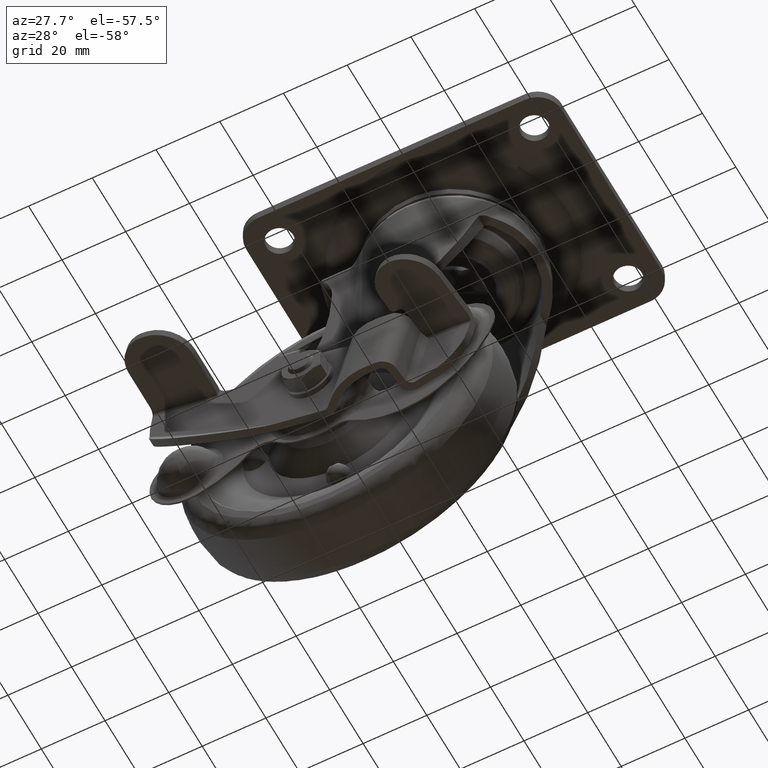
[diagram: clean part render]
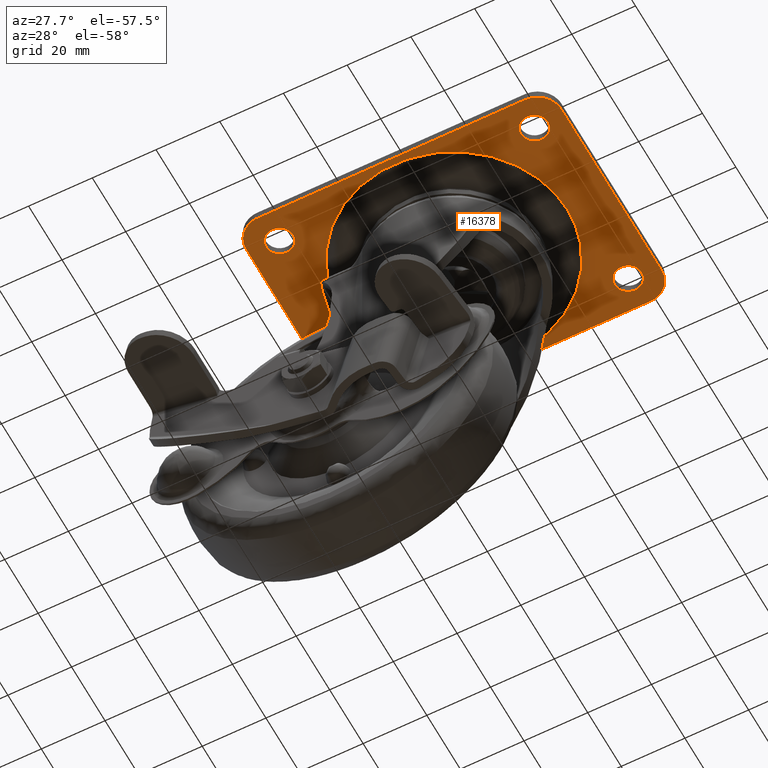
[diagram: same view with one face highlighted and labeled with its STEP entity id]
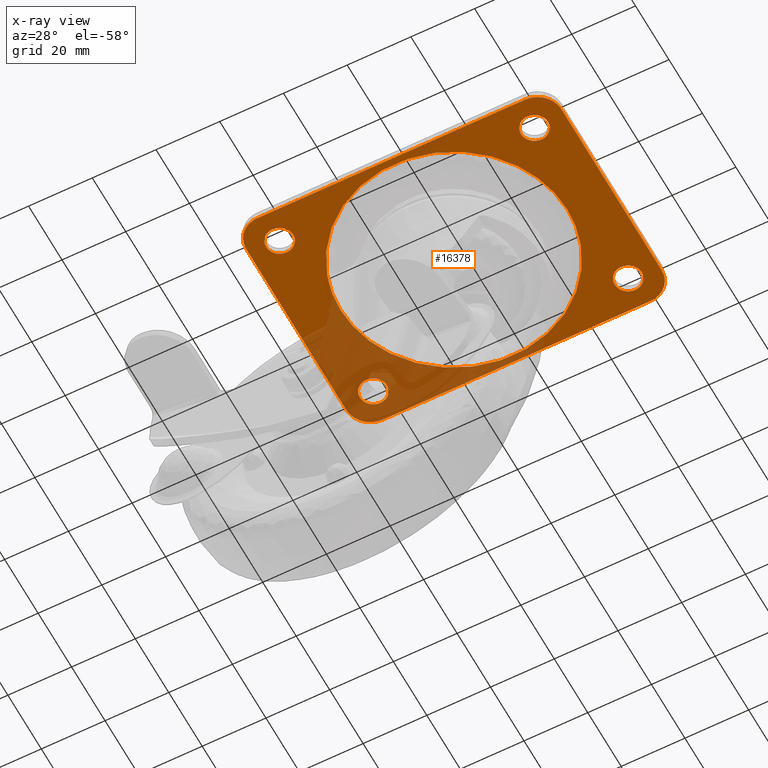
[diagram: x-ray of the same camera — body ghosted, the highlighted face saturated]
A machine part, auxiliary view. The second image highlights one B-rep face of the part: STEP entity #16378.
The next image is the same camera in x-ray: the body ghosted, the highlighted face saturated — about 25% of this face is hidden behind the body in this view.
In plain terms, the highlighted face is a freeform B-spline surface patch.
Its self-contained STEP definition (entity closure, byte-faithful):
#14474=CARTESIAN_POINT('',(-39.740543706934929,32.242072893290370,-2.899615000000000));
#14475=VERTEX_POINT('',#14474);
#14481=CARTESIAN_POINT('',(-35.750000000000007,28.0,-2.899615000000000));
#14482=VERTEX_POINT('',#14481);
#14483=CARTESIAN_POINT('',(-35.750000000000007,28.0,-2.899615000000000));
#14484=CARTESIAN_POINT('',(-35.750000000000014,31.998000784309607,-2.899615000000001));
#14485=CARTESIAN_POINT('',(-39.740543706934922,32.242072893290377,-2.899615000000000));
#14493=(BOUNDED_CURVE()B_SPLINE_CURVE(2,(#14483,#14484,#14485),.UNSPECIFIED.,.F.,.U.)B_SPLINE_CURVE_WITH_KNOTS((3,3),(0.500000000000000,0.739332962240263),.UNSPECIFIED.)CURVE()GEOMETRIC_REPRESENTATION_ITEM()RATIONAL_B_SPLINE_CURVE((1.0,0.719603993285164,0.976072041669547))REPRESENTATION_ITEM(''));
#14494=EDGE_CURVE('',#14482,#14475,#14493,.T.);
#14496=CARTESIAN_POINT('',(-40.259456293065071,23.757927106709630,-2.899615000000000));
#14497=VERTEX_POINT('',#14496);
#14498=CARTESIAN_POINT('',(-40.259456293065071,23.757927106709623,-2.899614999999999));
#14499=CARTESIAN_POINT('',(-40.129849244040031,23.749999999999993,-2.899614999999999));
#14500=CARTESIAN_POINT('',(-40.0,23.750000000000000,-2.899615000000000));
#14501=CARTESIAN_POINT('',(-35.750000000000007,23.750000000000011,-2.899615000000000));
#14502=CARTESIAN_POINT('',(-35.750000000000007,28.0,-2.899615000000000));
#14510=(BOUNDED_CURVE()B_SPLINE_CURVE(2,(#14498,#14499,#14500,#14501,#14502),.UNSPECIFIED.,.F.,.U.)B_SPLINE_CURVE_WITH_KNOTS((3,2,3),(0.239332962240263,0.250000000000000,0.500000000000000),.UNSPECIFIED.)CURVE()GEOMETRIC_REPRESENTATION_ITEM()RATIONAL_B_SPLINE_CURVE((0.976072041669547,0.987502787901384,1.0,0.707106781186548,1.0))REPRESENTATION_ITEM(''));
#14511=EDGE_CURVE('',#14497,#14482,#14510,.T.);
#14555=CARTESIAN_POINT('',(-44.250000000000000,28.0,-2.899615000000000));
#14556=VERTEX_POINT('',#14555);
#14557=CARTESIAN_POINT('',(-44.250000000000000,28.0,-2.899615000000000));
#14558=CARTESIAN_POINT('',(-44.250000000000007,24.001999215690390,-2.899615000000000));
#14559=CARTESIAN_POINT('',(-40.259456293065071,23.757927106709634,-2.899614999999999));
#14567=(BOUNDED_CURVE()B_SPLINE_CURVE(2,(#14557,#14558,#14559),.UNSPECIFIED.,.F.,.U.)B_SPLINE_CURVE_WITH_KNOTS((3,3),(0.0,0.239332962240263),.UNSPECIFIED.)CURVE()GEOMETRIC_REPRESENTATION_ITEM()RATIONAL_B_SPLINE_CURVE((1.0,0.719603993285164,0.976072041669546))REPRESENTATION_ITEM(''));
#14568=EDGE_CURVE('',#14556,#14497,#14567,.T.);
#14570=CARTESIAN_POINT('',(-39.740543706934922,32.242072893290377,-2.899615000000000));
#14571=CARTESIAN_POINT('',(-39.870150755959969,32.249999999999993,-2.899614999999999));
#14572=CARTESIAN_POINT('',(-40.0,32.250000000000000,-2.899615000000000));
#14573=CARTESIAN_POINT('',(-44.250000000000000,32.250000000000000,-2.899615000000000));
#14574=CARTESIAN_POINT('',(-44.250000000000000,28.0,-2.899615000000000));
#14582=(BOUNDED_CURVE()B_SPLINE_CURVE(2,(#14570,#14571,#14572,#14573,#14574),.UNSPECIFIED.,.F.,.U.)B_SPLINE_CURVE_WITH_KNOTS((3,2,3),(0.739332962240263,0.750000000000000,1.0),.UNSPECIFIED.)CURVE()GEOMETRIC_REPRESENTATION_ITEM()RATIONAL_B_SPLINE_CURVE((0.976072041669547,0.987502787901384,1.0,0.707106781186548,1.0))REPRESENTATION_ITEM(''));
#14583=EDGE_CURVE('',#14475,#14556,#14582,.T.);
#14780=CARTESIAN_POINT('',(40.259456293065071,32.242072893290370,-2.899615000000000));
#14781=VERTEX_POINT('',#14780);
#14787=CARTESIAN_POINT('',(44.250000000000000,28.0,-2.899615000000000));
#14788=VERTEX_POINT('',#14787);
#14789=CARTESIAN_POINT('',(44.250000000000000,28.0,-2.899615000000000));
#14790=CARTESIAN_POINT('',(44.249999999999993,31.998000784309607,-2.899615000000001));
#14791=CARTESIAN_POINT('',(40.259456293065064,32.242072893290377,-2.899615000000000));
#14799=(BOUNDED_CURVE()B_SPLINE_CURVE(2,(#14789,#14790,#14791),.UNSPECIFIED.,.F.,.U.)B_SPLINE_CURVE_WITH_KNOTS((3,3),(0.500000000000000,0.739332962240263),.UNSPECIFIED.)CURVE()GEOMETRIC_REPRESENTATION_ITEM()RATIONAL_B_SPLINE_CURVE((1.0,0.719603993285164,0.976072041669547))REPRESENTATION_ITEM(''));
#14800=EDGE_CURVE('',#14788,#14781,#14799,.T.);
#14802=CARTESIAN_POINT('',(39.740543706934929,23.757927106709630,-2.899615000000000));
#14803=VERTEX_POINT('',#14802);
#14804=CARTESIAN_POINT('',(39.740543706934929,23.757927106709623,-2.899614999999999));
#14805=CARTESIAN_POINT('',(39.870150755959976,23.749999999999993,-2.899614999999999));
#14806=CARTESIAN_POINT('',(40.0,23.750000000000000,-2.899615000000000));
#14807=CARTESIAN_POINT('',(44.250000000000000,23.750000000000011,-2.899615000000000));
#14808=CARTESIAN_POINT('',(44.250000000000000,28.0,-2.899615000000000));
#14816=(BOUNDED_CURVE()B_SPLINE_CURVE(2,(#14804,#14805,#14806,#14807,#14808),.UNSPECIFIED.,.F.,.U.)B_SPLINE_CURVE_WITH_KNOTS((3,2,3),(0.239332962240263,0.250000000000000,0.500000000000000),.UNSPECIFIED.)CURVE()GEOMETRIC_REPRESENTATION_ITEM()RATIONAL_B_SPLINE_CURVE((0.976072041669547,0.987502787901384,1.0,0.707106781186548,1.0))REPRESENTATION_ITEM(''));
#14817=EDGE_CURVE('',#14803,#14788,#14816,.T.);
#14861=CARTESIAN_POINT('',(35.750000000000007,28.0,-2.899615000000000));
#14862=VERTEX_POINT('',#14861);
#14863=CARTESIAN_POINT('',(35.750000000000007,28.0,-2.899615000000000));
#14864=CARTESIAN_POINT('',(35.750000000000007,24.001999215690386,-2.899615000000000));
#14865=CARTESIAN_POINT('',(39.740543706934936,23.757927106709634,-2.899615000000000));
#14873=(BOUNDED_CURVE()B_SPLINE_CURVE(2,(#14863,#14864,#14865),.UNSPECIFIED.,.F.,.U.)B_SPLINE_CURVE_WITH_KNOTS((3,3),(0.0,0.239332962240263),.UNSPECIFIED.)CURVE()GEOMETRIC_REPRESENTATION_ITEM()RATIONAL_B_SPLINE_CURVE((1.0,0.719603993285164,0.976072041669547))REPRESENTATION_ITEM(''));
#14874=EDGE_CURVE('',#14862,#14803,#14873,.T.);
#14876=CARTESIAN_POINT('',(40.259456293065057,32.242072893290370,-2.899614999999999));
#14877=CARTESIAN_POINT('',(40.129849244040031,32.250000000000000,-2.899615000000000));
#14878=CARTESIAN_POINT('',(40.0,32.250000000000000,-2.899615000000000));
#14879=CARTESIAN_POINT('',(35.750000000000007,32.250000000000000,-2.899615000000000));
#14880=CARTESIAN_POINT('',(35.750000000000007,28.0,-2.899615000000000));
#14888=(BOUNDED_CURVE()B_SPLINE_CURVE(2,(#14876,#14877,#14878,#14879,#14880),.UNSPECIFIED.,.F.,.U.)B_SPLINE_CURVE_WITH_KNOTS((3,2,3),(0.739332962240263,0.750000000000000,1.0),.UNSPECIFIED.)CURVE()GEOMETRIC_REPRESENTATION_ITEM()RATIONAL_B_SPLINE_CURVE((0.976072041669546,0.987502787901384,1.0,0.707106781186548,1.0))REPRESENTATION_ITEM(''));
#14889=EDGE_CURVE('',#14781,#14862,#14888,.T.);
#14962=CARTESIAN_POINT('',(40.259456293065071,-23.757927106709630,-2.899615000000000));
#14963=VERTEX_POINT('',#14962);
#14969=CARTESIAN_POINT('',(44.250000000000000,-28.0,-2.899615000000000));
#14970=VERTEX_POINT('',#14969);
#14971=CARTESIAN_POINT('',(44.250000000000000,-28.0,-2.899615000000000));
#14972=CARTESIAN_POINT('',(44.249999999999993,-24.001999215690397,-2.899615000000001));
#14973=CARTESIAN_POINT('',(40.259456293065064,-23.757927106709626,-2.899615000000000));
#14981=(BOUNDED_CURVE()B_SPLINE_CURVE(2,(#14971,#14972,#14973),.UNSPECIFIED.,.F.,.U.)B_SPLINE_CURVE_WITH_KNOTS((3,3),(0.500000000000000,0.739332962240263),.UNSPECIFIED.)CURVE()GEOMETRIC_REPRESENTATION_ITEM()RATIONAL_B_SPLINE_CURVE((1.0,0.719603993285164,0.976072041669547))REPRESENTATION_ITEM(''));
#14982=EDGE_CURVE('',#14970,#14963,#14981,.T.);
#14984=CARTESIAN_POINT('',(39.740543706934929,-32.242072893290370,-2.899615000000000));
#14985=VERTEX_POINT('',#14984);
#14986=CARTESIAN_POINT('',(39.740543706934929,-32.242072893290370,-2.899614999999999));
#14987=CARTESIAN_POINT('',(39.870150755959976,-32.250000000000000,-2.899614999999999));
#14988=CARTESIAN_POINT('',(40.0,-32.250000000000000,-2.899615000000000));
#14989=CARTESIAN_POINT('',(44.250000000000000,-32.250000000000000,-2.899615000000000));
#14990=CARTESIAN_POINT('',(44.250000000000000,-28.0,-2.899615000000000));
#14998=(BOUNDED_CURVE()B_SPLINE_CURVE(2,(#14986,#14987,#14988,#14989,#14990),.UNSPECIFIED.,.F.,.U.)B_SPLINE_CURVE_WITH_KNOTS((3,2,3),(0.239332962240263,0.250000000000000,0.500000000000000),.UNSPECIFIED.)CURVE()GEOMETRIC_REPRESENTATION_ITEM()RATIONAL_B_SPLINE_CURVE((0.976072041669547,0.987502787901384,1.0,0.707106781186548,1.0))REPRESENTATION_ITEM(''));
#14999=EDGE_CURVE('',#14985,#14970,#14998,.T.);
#15043=CARTESIAN_POINT('',(35.750000000000007,-28.0,-2.899615000000000));
#15044=VERTEX_POINT('',#15043);
#15045=CARTESIAN_POINT('',(35.750000000000007,-28.0,-2.899615000000000));
#15046=CARTESIAN_POINT('',(35.750000000000007,-31.998000784309617,-2.899615000000000));
#15047=CARTESIAN_POINT('',(39.740543706934929,-32.242072893290370,-2.899614999999999));
#15055=(BOUNDED_CURVE()B_SPLINE_CURVE(2,(#15045,#15046,#15047),.UNSPECIFIED.,.F.,.U.)B_SPLINE_CURVE_WITH_KNOTS((3,3),(0.0,0.239332962240263),.UNSPECIFIED.)CURVE()GEOMETRIC_REPRESENTATION_ITEM()RATIONAL_B_SPLINE_CURVE((1.0,0.719603993285164,0.976072041669546))REPRESENTATION_ITEM(''));
#15056=EDGE_CURVE('',#15044,#14985,#15055,.T.);
#15058=CARTESIAN_POINT('',(40.259456293065064,-23.757927106709634,-2.899615000000000));
#15059=CARTESIAN_POINT('',(40.129849244040031,-23.750000000000004,-2.899614999999999));
#15060=CARTESIAN_POINT('',(40.0,-23.750000000000000,-2.899615000000000));
#15061=CARTESIAN_POINT('',(35.750000000000007,-23.750000000000011,-2.899615000000000));
#15062=CARTESIAN_POINT('',(35.750000000000007,-28.0,-2.899615000000000));
#15070=(BOUNDED_CURVE()B_SPLINE_CURVE(2,(#15058,#15059,#15060,#15061,#15062),.UNSPECIFIED.,.F.,.U.)B_SPLINE_CURVE_WITH_KNOTS((3,2,3),(0.739332962240263,0.750000000000000,1.0),.UNSPECIFIED.)CURVE()GEOMETRIC_REPRESENTATION_ITEM()RATIONAL_B_SPLINE_CURVE((0.976072041669547,0.987502787901384,1.0,0.707106781186548,1.0))REPRESENTATION_ITEM(''));
#15071=EDGE_CURVE('',#14963,#15044,#15070,.T.);
#15144=CARTESIAN_POINT('',(-39.740543706934929,-23.757927106709630,-2.899615000000000));
#15145=VERTEX_POINT('',#15144);
#15151=CARTESIAN_POINT('',(-35.750000000000007,-28.0,-2.899615000000000));
#15152=VERTEX_POINT('',#15151);
#15153=CARTESIAN_POINT('',(-35.750000000000007,-28.0,-2.899615000000000));
#15154=CARTESIAN_POINT('',(-35.750000000000014,-24.001999215690397,-2.899615000000001));
#15155=CARTESIAN_POINT('',(-39.740543706934922,-23.757927106709626,-2.899615000000000));
#15163=(BOUNDED_CURVE()B_SPLINE_CURVE(2,(#15153,#15154,#15155),.UNSPECIFIED.,.F.,.U.)B_SPLINE_CURVE_WITH_KNOTS((3,3),(0.500000000000000,0.739332962240263),.UNSPECIFIED.)CURVE()GEOMETRIC_REPRESENTATION_ITEM()RATIONAL_B_SPLINE_CURVE((1.0,0.719603993285164,0.976072041669547))REPRESENTATION_ITEM(''));
#15164=EDGE_CURVE('',#15152,#15145,#15163,.T.);
#15166=CARTESIAN_POINT('',(-40.259456293065071,-32.242072893290370,-2.899615000000000));
#15167=VERTEX_POINT('',#15166);
#15168=CARTESIAN_POINT('',(-40.259456293065064,-32.242072893290377,-2.899615000000000));
#15169=CARTESIAN_POINT('',(-40.129849244040024,-32.249999999999993,-2.899614999999999));
#15170=CARTESIAN_POINT('',(-40.0,-32.250000000000000,-2.899615000000000));
#15171=CARTESIAN_POINT('',(-35.750000000000007,-32.250000000000000,-2.899615000000000));
#15172=CARTESIAN_POINT('',(-35.750000000000007,-28.0,-2.899615000000000));
#15180=(BOUNDED_CURVE()B_SPLINE_CURVE(2,(#15168,#15169,#15170,#15171,#15172),.UNSPECIFIED.,.F.,.U.)B_SPLINE_CURVE_WITH_KNOTS((3,2,3),(0.239332962240263,0.250000000000000,0.500000000000000),.UNSPECIFIED.)CURVE()GEOMETRIC_REPRESENTATION_ITEM()RATIONAL_B_SPLINE_CURVE((0.976072041669547,0.987502787901384,1.0,0.707106781186548,1.0))REPRESENTATION_ITEM(''));
#15181=EDGE_CURVE('',#15167,#15152,#15180,.T.);
#15225=CARTESIAN_POINT('',(-44.250000000000000,-28.0,-2.899615000000000));
#15226=VERTEX_POINT('',#15225);
#15227=CARTESIAN_POINT('',(-44.250000000000000,-28.0,-2.899615000000000));
#15228=CARTESIAN_POINT('',(-44.250000000000007,-31.998000784309617,-2.899615000000000));
#15229=CARTESIAN_POINT('',(-40.259456293065064,-32.242072893290370,-2.899615000000000));
#15237=(BOUNDED_CURVE()B_SPLINE_CURVE(2,(#15227,#15228,#15229),.UNSPECIFIED.,.F.,.U.)B_SPLINE_CURVE_WITH_KNOTS((3,3),(0.0,0.239332962240263),.UNSPECIFIED.)CURVE()GEOMETRIC_REPRESENTATION_ITEM()RATIONAL_B_SPLINE_CURVE((1.0,0.719603993285164,0.976072041669547))REPRESENTATION_ITEM(''));
#15238=EDGE_CURVE('',#15226,#15167,#15237,.T.);
#15240=CARTESIAN_POINT('',(-39.740543706934922,-23.757927106709626,-2.899615000000000));
#15241=CARTESIAN_POINT('',(-39.870150755959969,-23.749999999999996,-2.899614999999999));
#15242=CARTESIAN_POINT('',(-40.0,-23.750000000000000,-2.899615000000000));
#15243=CARTESIAN_POINT('',(-44.250000000000000,-23.750000000000011,-2.899615000000000));
#15244=CARTESIAN_POINT('',(-44.250000000000000,-28.0,-2.899615000000000));
#15252=(BOUNDED_CURVE()B_SPLINE_CURVE(2,(#15240,#15241,#15242,#15243,#15244),.UNSPECIFIED.,.F.,.U.)B_SPLINE_CURVE_WITH_KNOTS((3,2,3),(0.739332962240263,0.750000000000000,1.0),.UNSPECIFIED.)CURVE()GEOMETRIC_REPRESENTATION_ITEM()RATIONAL_B_SPLINE_CURVE((0.976072041669547,0.987502787901384,1.0,0.707106781186548,1.0))REPRESENTATION_ITEM(''));
#15253=EDGE_CURVE('',#15145,#15226,#15252,.T.);
#15978=CARTESIAN_POINT('',(30.058073386032770,-19.075433417789359,-2.899615000052545));
#15979=VERTEX_POINT('',#15978);
#15993=CARTESIAN_POINT('',(-35.599999097739129,0.0,-2.899614999999992));
#15994=VERTEX_POINT('',#15993);
#15995=CARTESIAN_POINT('',(30.058073386032770,-19.075433417789359,-2.899615000052545));
#15996=CARTESIAN_POINT('',(29.098391500842581,-20.587857947874870,-2.899615000052162));
#15997=CARTESIAN_POINT('',(27.308033067163169,-22.987369526586878,-2.899615000051349));
#15998=CARTESIAN_POINT('',(24.197290961656670,-26.216397802168590,-2.899615000049758));
#15999=CARTESIAN_POINT('',(21.061985009777629,-28.808532476094609,-2.899615000047989));
#16000=CARTESIAN_POINT('',(17.185169431310261,-31.293988911903771,-2.899615000045684));
#16001=CARTESIAN_POINT('',(12.958946003760110,-33.279849748536108,-2.899615000042992));
#16002=CARTESIAN_POINT('',(8.330079105129297,-34.716282314796082,-2.899615000039863));
#16003=CARTESIAN_POINT('',(3.140663838837280,-35.607667572608520,-2.899615000036222));
#16004=CARTESIAN_POINT('',(-2.194462796533876,-35.683014420064900,-2.899615000032300));
#16005=CARTESIAN_POINT('',(-7.583635729387412,-34.899329253445622,-2.899615000028159));
#16006=CARTESIAN_POINT('',(-11.722083139135430,-33.696986874826578,-2.899615000024840));
#16007=CARTESIAN_POINT('',(-15.361126697031491,-32.175680751571967,-2.899615000021832));
#16008=CARTESIAN_POINT('',(-19.209145001063710,-30.115760829511700,-2.899615000018549));
#16009=CARTESIAN_POINT('',(-23.270230698551771,-27.139668603478469,-2.899615000014914));
#16010=CARTESIAN_POINT('',(-26.721443086384081,-23.649851715800619,-2.899615000011618));
#16011=CARTESIAN_POINT('',(-29.292240298808910,-20.348509149344750,-2.899615000009009));
#16012=CARTESIAN_POINT('',(-31.691299617006010,-16.487881507337299,-2.899615000006437));
#16013=CARTESIAN_POINT('',(-33.757747029725998,-11.766722574652411,-2.899615000003825));
#16014=CARTESIAN_POINT('',(-35.247402166870067,-6.030273112681797,-2.899615000001644));
#16015=CARTESIAN_POINT('',(-35.600225238738211,-2.149425820226720,-2.899615000000376));
#16016=CARTESIAN_POINT('',(-35.599999097739129,0.0,-2.899614999999992));
#16017=B_SPLINE_CURVE_WITH_KNOTS('',3,(#15995,#15996,#15997,#15998,#15999,#16000,#16001,#16002,#16003,#16004,#16005,#16006,#16007,#16008,#16009,#16010,#16011,#16012,#16013,#16014,#16015,#16016),.UNSPECIFIED.,.F.,.U.,(4,1,1,1,1,1,1,1,1,1,1,1,1,1,1,1,1,1,1,4),(0.000000174530584,5.373602630505474,8.956004502487076,13.434010247239851,17.553768520196090,22.748263575230471,27.405446191899699,32.062566900626841,38.510704102619719,43.347051698055452,48.362407224231717,51.407409634806363,55.168968570400899,61.438177311285742,66.453552829888594,69.856830516019869,73.976587469554488,80.066676928563766,85.261222157516244,91.709467154770650),.UNSPECIFIED.);
#16018=EDGE_CURVE('',#15979,#15994,#16017,.T.);
#16020=CARTESIAN_POINT('',(-30.058073386032760,19.075433417789359,-2.899615000052543));
#16021=VERTEX_POINT('',#16020);
#16022=CARTESIAN_POINT('',(-35.599999097739129,0.0,-2.899614999999992));
#16023=CARTESIAN_POINT('',(-35.599999097725018,10.342755837523029,-2.899615000026267));
#16024=CARTESIAN_POINT('',(-30.058073386032763,19.075433417789355,-2.899615000052544));
#16032=(BOUNDED_CURVE()B_SPLINE_CURVE(2,(#16022,#16023,#16024),.UNSPECIFIED.,.F.,.U.)B_SPLINE_CURVE_WITH_KNOTS((3,3),(0.0,0.091683542668444),.UNSPECIFIED.)CURVE()GEOMETRIC_REPRESENTATION_ITEM()RATIONAL_B_SPLINE_CURVE((1.0,0.892586048302476,0.863956829594121))REPRESENTATION_ITEM(''));
#16033=EDGE_CURVE('',#15994,#16021,#16032,.T.);
#16084=CARTESIAN_POINT('',(35.599999097739150,0.0,-2.899615000000000));
#16085=VERTEX_POINT('',#16084);
#16086=CARTESIAN_POINT('',(-30.058073386032760,19.075433417789359,-2.899615000052543));
#16087=CARTESIAN_POINT('',(-29.098369172287079,20.587839964559560,-2.899615000052164));
#16088=CARTESIAN_POINT('',(-26.950033088849800,23.467338082136610,-2.899615000051177));
#16089=CARTESIAN_POINT('',(-23.413086572534120,26.958563799075929,-2.899615000049345));
#16090=CARTESIAN_POINT('',(-19.113683163671869,30.197114319270071,-2.899615000046830));
#16091=CARTESIAN_POINT('',(-14.680298588669050,32.588187983309389,-2.899615000044106));
#16092=CARTESIAN_POINT('',(-9.437936199185703,34.449315278542528,-2.899615000040634));
#16093=CARTESIAN_POINT('',(-5.035231842050735,35.343041359501740,-2.899615000037557));
#16094=CARTESIAN_POINT('',(-0.265618913051960,35.686898120866118,-2.899615000034123));
#16095=CARTESIAN_POINT('',(3.979737479043231,35.479623797243462,-2.899615000030942));
#16096=CARTESIAN_POINT('',(8.687277349149296,34.624918827768013,-2.899615000027282));
#16097=CARTESIAN_POINT('',(13.763961333530670,33.010741274484808,-2.899615000023204));
#16098=CARTESIAN_POINT('',(18.300269108433209,30.683911949195600,-2.899615000019329));
#16099=CARTESIAN_POINT('',(22.102003095856499,27.984755679143358,-2.899615000015861));
#16100=CARTESIAN_POINT('',(25.344341796932380,25.152905308228920,-2.899615000013468));
#16101=CARTESIAN_POINT('',(28.344388196173849,21.728839989351041,-2.899615000009492));
#16102=CARTESIAN_POINT('',(31.167921217935501,17.429754709615018,-2.899615000007302));
#16103=CARTESIAN_POINT('',(33.334787544058933,12.889721308193799,-2.899615000004343));
#16104=CARTESIAN_POINT('',(35.126334508652143,6.925778920402900,-2.899615000001855));
#16105=CARTESIAN_POINT('',(35.600450597467017,2.567416251465228,-2.899615000000590));
#16106=CARTESIAN_POINT('',(35.599999097739150,0.0,-2.899615000000000));
#16107=B_SPLINE_CURVE_WITH_KNOTS('',3,(#16086,#16087,#16088,#16089,#16090,#16091,#16092,#16093,#16094,#16095,#16096,#16097,#16098,#16099,#16100,#16101,#16102,#16103,#16104,#16105,#16106),.UNSPECIFIED.,.F.,.U.,(4,1,1,1,1,1,1,1,1,1,1,1,1,1,1,1,1,1,4),(0.000000174443628,5.373602630427612,10.747205672747400,14.866980124126020,21.494464879512460,25.793349412616472,31.525208224100560,34.928495382444709,40.122878320803331,44.242634314349907,49.258001231645942,56.064569950817777,59.467841839345191,63.229379897889189,68.961228705518920,73.080993518599954,78.633712185857206,84.007333639038464,91.709467154770635),.UNSPECIFIED.);
#16108=EDGE_CURVE('',#16021,#16085,#16107,.T.);
#16110=CARTESIAN_POINT('',(35.599999097739150,0.0,-2.899615000000000));
#16111=CARTESIAN_POINT('',(35.599999097725025,-10.342755837523022,-2.899615000026273));
#16112=CARTESIAN_POINT('',(30.058073386032778,-19.075433417789355,-2.899615000052545));
#16120=(BOUNDED_CURVE()B_SPLINE_CURVE(2,(#16110,#16111,#16112),.UNSPECIFIED.,.F.,.U.)B_SPLINE_CURVE_WITH_KNOTS((3,3),(0.500000000000000,0.591683542668444),.UNSPECIFIED.)CURVE()GEOMETRIC_REPRESENTATION_ITEM()RATIONAL_B_SPLINE_CURVE((1.0,0.892586048302476,0.863956829594121))REPRESENTATION_ITEM(''));
#16121=EDGE_CURVE('',#16085,#15979,#16120,.T.);
#16253=CARTESIAN_POINT('',(-54.445049808118803,41.246249854635437,-2.899615000000000));
#16254=CARTESIAN_POINT('',(54.445052463505732,41.246249854635437,-2.899615000000000));
#16255=CARTESIAN_POINT('',(-54.445049808118803,-41.246251866292198,-2.899615000000000));
#16256=CARTESIAN_POINT('',(54.445052463505732,-41.246251866292198,-2.899615000000000));
#16257=B_SPLINE_SURFACE_WITH_KNOTS('',1,1,((#16253,#16255),(#16254,#16256)),.UNSPECIFIED.,.F.,.F.,.U.,(2,2),(2,2),(0.0,108.890102271624500),(0.0,82.492501720927635),.UNSPECIFIED.);
#16258=CARTESIAN_POINT('',(42.0,37.500000000000000,-2.899615000000000));
#16259=VERTEX_POINT('',#16258);
#16260=CARTESIAN_POINT('',(-42.0,37.500000000000000,-2.899615000000000));
#16261=VERTEX_POINT('',#16260);
#16262=CARTESIAN_POINT('',(42.0,37.500000000000000,-2.899615000000000));
#16263=CARTESIAN_POINT('',(-42.0,37.500000000000000,-2.899615000000000));
#16264=QUASI_UNIFORM_CURVE('',1,(#16262,#16263),.UNSPECIFIED.,.F.,.U.);
#16265=EDGE_CURVE('',#16259,#16261,#16264,.T.);
#16266=ORIENTED_EDGE('',*,*,#16265,.F.);
#16267=CARTESIAN_POINT('',(49.500000000000000,30.0,-2.899615000000000));
#16268=VERTEX_POINT('',#16267);
#16269=CARTESIAN_POINT('',(49.500000000000000,30.0,-2.899615000000000));
#16270=CARTESIAN_POINT('',(49.500000000000000,37.500000000000000,-2.899615000000001));
#16271=CARTESIAN_POINT('',(42.0,37.500000000000000,-2.899615000000000));
#16279=(BOUNDED_CURVE()B_SPLINE_CURVE(2,(#16269,#16270,#16271),.UNSPECIFIED.,.F.,.U.)CURVE()GEOMETRIC_REPRESENTATION_ITEM()QUASI_UNIFORM_CURVE()RATIONAL_B_SPLINE_CURVE((1.0,0.707106781186547,1.0))REPRESENTATION_ITEM(''));
#16280=EDGE_CURVE('',#16268,#16259,#16279,.T.);
#16281=ORIENTED_EDGE('',*,*,#16280,.F.);
#16282=CARTESIAN_POINT('',(49.500000000000000,-30.0,-2.899615000000000));
#16283=VERTEX_POINT('',#16282);
#16284=CARTESIAN_POINT('',(49.500000000000000,-30.0,-2.899615000000000));
#16285=CARTESIAN_POINT('',(49.500000000000000,30.0,-2.899615000000000));
#16286=QUASI_UNIFORM_CURVE('',1,(#16284,#16285),.UNSPECIFIED.,.F.,.U.);
#16287=EDGE_CURVE('',#16283,#16268,#16286,.T.);
#16288=ORIENTED_EDGE('',*,*,#16287,.F.);
#16289=CARTESIAN_POINT('',(42.0,-37.500000000000000,-2.899615000000000));
#16290=VERTEX_POINT('',#16289);
#16291=CARTESIAN_POINT('',(42.0,-37.500000000000000,-2.899615000000000));
#16292=CARTESIAN_POINT('',(49.500000000000000,-37.500000000000000,-2.899615000000001));
#16293=CARTESIAN_POINT('',(49.500000000000000,-30.0,-2.899615000000000));
#16301=(BOUNDED_CURVE()B_SPLINE_CURVE(2,(#16291,#16292,#16293),.UNSPECIFIED.,.F.,.U.)CURVE()GEOMETRIC_REPRESENTATION_ITEM()QUASI_UNIFORM_CURVE()RATIONAL_B_SPLINE_CURVE((1.0,0.707106781186547,1.0))REPRESENTATION_ITEM(''));
#16302=EDGE_CURVE('',#16290,#16283,#16301,.T.);
#16303=ORIENTED_EDGE('',*,*,#16302,.F.);
#16304=CARTESIAN_POINT('',(-42.0,-37.500000000000000,-2.899615000000000));
#16305=VERTEX_POINT('',#16304);
#16306=CARTESIAN_POINT('',(-42.0,-37.500000000000000,-2.899615000000000));
#16307=CARTESIAN_POINT('',(42.0,-37.500000000000000,-2.899615000000000));
#16308=QUASI_UNIFORM_CURVE('',1,(#16306,#16307),.UNSPECIFIED.,.F.,.U.);
#16309=EDGE_CURVE('',#16305,#16290,#16308,.T.);
#16310=ORIENTED_EDGE('',*,*,#16309,.F.);
#16311=CARTESIAN_POINT('',(-49.500000000000000,-30.0,-2.899615000000000));
#16312=VERTEX_POINT('',#16311);
#16313=CARTESIAN_POINT('',(-49.500000000000000,-30.0,-2.899615000000000));
#16314=CARTESIAN_POINT('',(-49.500000000000000,-37.500000000000000,-2.899615000000001));
#16315=CARTESIAN_POINT('',(-42.0,-37.500000000000000,-2.899615000000000));
#16323=(BOUNDED_CURVE()B_SPLINE_CURVE(2,(#16313,#16314,#16315),.UNSPECIFIED.,.F.,.U.)CURVE()GEOMETRIC_REPRESENTATION_ITEM()QUASI_UNIFORM_CURVE()RATIONAL_B_SPLINE_CURVE((1.0,0.707106781186547,1.0))REPRESENTATION_ITEM(''));
#16324=EDGE_CURVE('',#16312,#16305,#16323,.T.);
#16325=ORIENTED_EDGE('',*,*,#16324,.F.);
#16326=CARTESIAN_POINT('',(-49.500000000000000,30.0,-2.899615000000000));
#16327=VERTEX_POINT('',#16326);
#16328=CARTESIAN_POINT('',(-49.500000000000000,30.0,-2.899615000000000));
#16329=CARTESIAN_POINT('',(-49.500000000000000,-30.0,-2.899615000000000));
#16330=QUASI_UNIFORM_CURVE('',1,(#16328,#16329),.UNSPECIFIED.,.F.,.U.);
#16331=EDGE_CURVE('',#16327,#16312,#16330,.T.);
#16332=ORIENTED_EDGE('',*,*,#16331,.F.);
#16333=CARTESIAN_POINT('',(-42.0,37.500000000000000,-2.899615000000000));
#16334=CARTESIAN_POINT('',(-49.500000000000000,37.500000000000000,-2.899615000000001));
#16335=CARTESIAN_POINT('',(-49.500000000000000,30.0,-2.899615000000000));
#16343=(BOUNDED_CURVE()B_SPLINE_CURVE(2,(#16333,#16334,#16335),.UNSPECIFIED.,.F.,.U.)CURVE()GEOMETRIC_REPRESENTATION_ITEM()QUASI_UNIFORM_CURVE()RATIONAL_B_SPLINE_CURVE((1.0,0.707106781186547,1.0))REPRESENTATION_ITEM(''));
#16344=EDGE_CURVE('',#16261,#16327,#16343,.T.);
#16345=ORIENTED_EDGE('',*,*,#16344,.F.);
#16346=EDGE_LOOP('',(#16266,#16281,#16288,#16303,#16310,#16325,#16332,#16345));
#16347=FACE_OUTER_BOUND('',#16346,.T.);
#16348=ORIENTED_EDGE('',*,*,#16033,.F.);
#16349=ORIENTED_EDGE('',*,*,#16018,.F.);
#16350=ORIENTED_EDGE('',*,*,#16121,.F.);
#16351=ORIENTED_EDGE('',*,*,#16108,.F.);
#16352=EDGE_LOOP('',(#16348,#16349,#16350,#16351));
#16353=FACE_BOUND('',#16352,.T.);
#16354=ORIENTED_EDGE('',*,*,#15164,.T.);
#16355=ORIENTED_EDGE('',*,*,#15253,.T.);
#16356=ORIENTED_EDGE('',*,*,#15238,.T.);
#16357=ORIENTED_EDGE('',*,*,#15181,.T.);
#16358=EDGE_LOOP('',(#16354,#16355,#16356,#16357));
#16359=FACE_BOUND('',#16358,.T.);
#16360=ORIENTED_EDGE('',*,*,#14982,.T.);
#16361=ORIENTED_EDGE('',*,*,#15071,.T.);
#16362=ORIENTED_EDGE('',*,*,#15056,.T.);
#16363=ORIENTED_EDGE('',*,*,#14999,.T.);
#16364=EDGE_LOOP('',(#16360,#16361,#16362,#16363));
#16365=FACE_BOUND('',#16364,.T.);
#16366=ORIENTED_EDGE('',*,*,#14800,.T.);
#16367=ORIENTED_EDGE('',*,*,#14889,.T.);
#16368=ORIENTED_EDGE('',*,*,#14874,.T.);
#16369=ORIENTED_EDGE('',*,*,#14817,.T.);
#16370=EDGE_LOOP('',(#16366,#16367,#16368,#16369));
#16371=FACE_BOUND('',#16370,.T.);
#16372=ORIENTED_EDGE('',*,*,#14494,.T.);
#16373=ORIENTED_EDGE('',*,*,#14583,.T.);
#16374=ORIENTED_EDGE('',*,*,#14568,.T.);
#16375=ORIENTED_EDGE('',*,*,#14511,.T.);
#16376=EDGE_LOOP('',(#16372,#16373,#16374,#16375));
#16377=FACE_BOUND('',#16376,.T.);
#16378=ADVANCED_FACE('',(#16347,#16353,#16359,#16365,#16371,#16377),#16257,.T.);